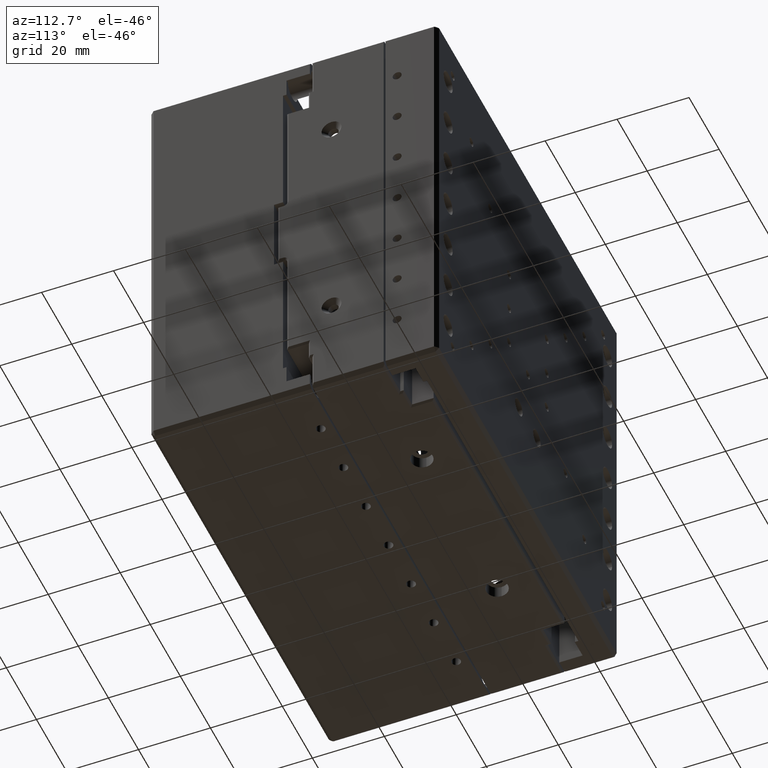
[diagram: clean part render]
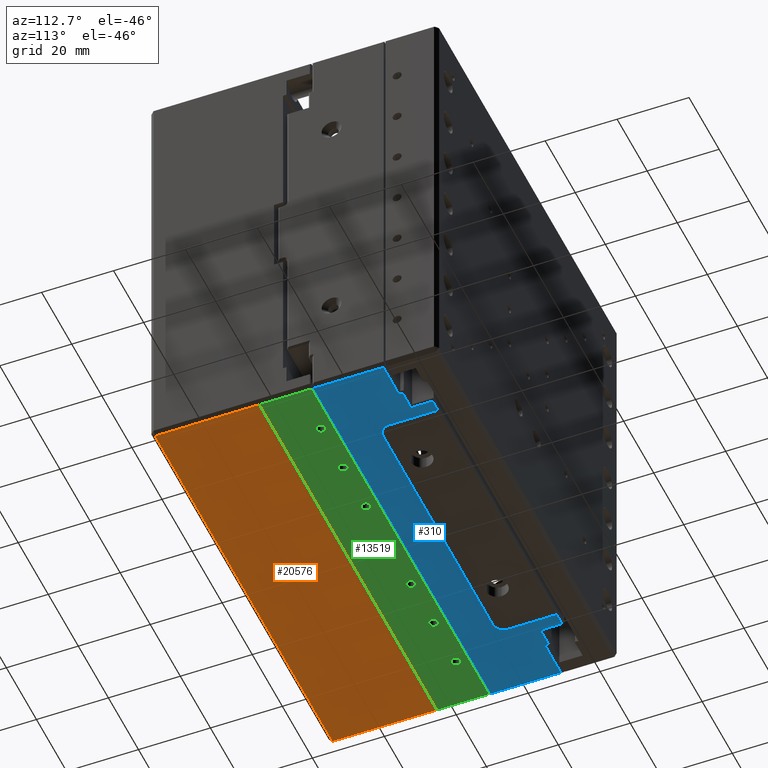
[diagram: same view with three faces highlighted in distinct colors, each labeled with its STEP entity id]
A machine part, auxiliary view with three faces highlighted in distinct colors.
Their STEP definitions:

[orange] entity #20576 — the highlighted planar face has unit normal (0, 0, 1).
#171 = VECTOR ( 'NONE', #16924, 1000.000000000000000 ) ;
#388 = CARTESIAN_POINT ( 'NONE',  ( 59.00000000000002100, -24.99999999999999300, -60.00000000000002800 ) ) ;
#523 = VECTOR ( 'NONE', #14532, 1000.000000000000000 ) ;
#1017 = ORIENTED_EDGE ( 'NONE', *, *, #13333, .T. ) ;
#3769 = VECTOR ( 'NONE', #12000, 1000.000000000000000 ) ;
#4400 = VERTEX_POINT ( 'NONE', #20379 ) ;
#4422 = EDGE_CURVE ( 'NONE', #6402, #12641, #8148, .T. ) ;
#4798 = DIRECTION ( 'NONE',  ( 1.000000000000000000, 0.0000000000000000000, -0.0000000000000000000 ) ) ;
#6305 = ORIENTED_EDGE ( 'NONE', *, *, #19284, .T. ) ;
#6318 = CARTESIAN_POINT ( 'NONE',  ( -60.00000000000000000, -54.00000000000000700, -60.00000000000002800 ) ) ;
#6402 = VERTEX_POINT ( 'NONE', #388 ) ;
#7756 = CARTESIAN_POINT ( 'NONE',  ( -59.00000000000001400, -54.00000000000000700, -60.00000000000002800 ) ) ;
#8098 = ORIENTED_EDGE ( 'NONE', *, *, #18927, .T. ) ;
#8148 = LINE ( 'NONE', #15329, #3769 ) ;
#8298 = PLANE ( 'NONE',  #15074 ) ;
#8508 = LINE ( 'NONE', #6318, #523 ) ;
#8548 = VECTOR ( 'NONE', #16457, 1000.000000000000000 ) ;
#12000 = DIRECTION ( 'NONE',  ( -1.000000000000000000, -0.0000000000000000000, -0.0000000000000000000 ) ) ;
#12641 = VERTEX_POINT ( 'NONE', #13646 ) ;
#12965 = VERTEX_POINT ( 'NONE', #7756 ) ;
#13333 = EDGE_CURVE ( 'NONE', #6402, #4400, #13375, .T. ) ;
#13375 = LINE ( 'NONE', #18687, #171 ) ;
#13646 = CARTESIAN_POINT ( 'NONE',  ( -59.00000000000001400, -24.99999999999999300, -60.00000000000002800 ) ) ;
#13740 = LINE ( 'NONE', #18182, #8548 ) ;
#13862 = EDGE_LOOP ( 'NONE', ( #18273, #1017, #6305, #8098 ) ) ;
#13902 = FACE_OUTER_BOUND ( 'NONE', #13862, .T. ) ;
#14532 = DIRECTION ( 'NONE',  ( -1.000000000000000000, 0.0000000000000000000, 0.0000000000000000000 ) ) ;
#15074 = AXIS2_PLACEMENT_3D ( 'NONE', #18084, #21473, #4798 ) ;
#15329 = CARTESIAN_POINT ( 'NONE',  ( -60.00000000000000000, -24.99999999999999300, -60.00000000000002800 ) ) ;
#16457 = DIRECTION ( 'NONE',  ( 0.0000000000000000000, 1.000000000000000000, 0.0000000000000000000 ) ) ;
#16924 = DIRECTION ( 'NONE',  ( 0.0000000000000000000, -1.000000000000000000, 0.0000000000000000000 ) ) ;
#18084 = CARTESIAN_POINT ( 'NONE',  ( -60.00000000000000000, -24.99999999999999300, -60.00000000000002800 ) ) ;
#18182 = CARTESIAN_POINT ( 'NONE',  ( -59.00000000000001400, -24.99999999999999300, -60.00000000000002800 ) ) ;
#18273 = ORIENTED_EDGE ( 'NONE', *, *, #4422, .F. ) ;
#18687 = CARTESIAN_POINT ( 'NONE',  ( 59.00000000000002100, -24.99999999999999300, -60.00000000000002800 ) ) ;
#18927 = EDGE_CURVE ( 'NONE', #12965, #12641, #13740, .T. ) ;
#19284 = EDGE_CURVE ( 'NONE', #4400, #12965, #8508, .T. ) ;
#20379 = CARTESIAN_POINT ( 'NONE',  ( 59.00000000000002100, -54.00000000000000700, -60.00000000000002800 ) ) ;
#20576 = ADVANCED_FACE ( 'NONE', ( #13902 ), #8298, .F. ) ;
#21473 = DIRECTION ( 'NONE',  ( 0.0000000000000000000, 0.0000000000000000000, 1.000000000000000000 ) ) ;

[blue] entity #310 — the highlighted planar face has unit normal (0, 0, 1).
#114 = CARTESIAN_POINT ( 'NONE',  ( 59.00000000000000000, 17.00000000000000000, -60.00000000000000000 ) ) ;
#153 = VERTEX_POINT ( 'NONE', #17146 ) ;
#286 = VERTEX_POINT ( 'NONE', #4367 ) ;
#310 = ADVANCED_FACE ( 'NONE', ( #13743 ), #1098, .F. ) ;
#338 = LINE ( 'NONE', #12233, #21033 ) ;
#354 = EDGE_CURVE ( 'NONE', #14848, #13797, #9636, .T. ) ;
#1040 = VERTEX_POINT ( 'NONE', #15326 ) ;
#1098 = PLANE ( 'NONE',  #18222 ) ;
#1236 = LINE ( 'NONE', #13287, #18053 ) ;
#1336 = LINE ( 'NONE', #4108, #3438 ) ;
#1419 = EDGE_CURVE ( 'NONE', #2786, #10967, #1236, .T. ) ;
#1724 = VECTOR ( 'NONE', #5847, 1000.000000000000000 ) ;
#1769 = EDGE_CURVE ( 'NONE', #18748, #14848, #13356, .T. ) ;
#2083 = CARTESIAN_POINT ( 'NONE',  ( -39.49999999999999300, 10.00000000000000200, -60.00000000000000000 ) ) ;
#2149 = CARTESIAN_POINT ( 'NONE',  ( 39.49999999999999300, 3.000000000000001800, -60.00000000000000000 ) ) ;
#2183 = CARTESIAN_POINT ( 'NONE',  ( -36.49999999999999300, 3.000000000000001800, -60.00000000000000000 ) ) ;
#2184 = AXIS2_PLACEMENT_3D ( 'NONE', #19085, #14304, #12710 ) ;
#2407 = DIRECTION ( 'NONE',  ( 0.0000000000000000000, -1.000000000000000000, 0.0000000000000000000 ) ) ;
#2653 = VECTOR ( 'NONE', #15018, 1000.000000000000000 ) ;
#2786 = VERTEX_POINT ( 'NONE', #14845 ) ;
#2926 = VERTEX_POINT ( 'NONE', #15548 ) ;
#3009 = LINE ( 'NONE', #21409, #13615 ) ;
#3127 = DIRECTION ( 'NONE',  ( -0.0000000000000000000, 1.000000000000000000, -0.0000000000000000000 ) ) ;
#3421 = LINE ( 'NONE', #10778, #11682 ) ;
#3438 = VECTOR ( 'NONE', #9073, 1000.000000000000000 ) ;
#3462 = VECTOR ( 'NONE', #18795, 1000.000000000000000 ) ;
#3935 = LINE ( 'NONE', #5818, #14807 ) ;
#3966 = ORIENTED_EDGE ( 'NONE', *, *, #6694, .T. ) ;
#4045 = ORIENTED_EDGE ( 'NONE', *, *, #12405, .T. ) ;
#4108 = CARTESIAN_POINT ( 'NONE',  ( 43.00000000000000000, 17.00000000000000000, -60.00000000000000000 ) ) ;
#4124 = VERTEX_POINT ( 'NONE', #18172 ) ;
#4367 = CARTESIAN_POINT ( 'NONE',  ( -59.00000000000000000, -10.00000000000000200, -60.00000000000000000 ) ) ;
#4499 = CARTESIAN_POINT ( 'NONE',  ( 36.49999999999999300, 1.734723475976807100E-015, -60.00000000000000000 ) ) ;
#4510 = CARTESIAN_POINT ( 'NONE',  ( 43.00000000000000000, 16.50000000000000000, -60.00000000000000000 ) ) ;
#4951 = ORIENTED_EDGE ( 'NONE', *, *, #18677, .T. ) ;
#4982 = DIRECTION ( 'NONE',  ( 0.0000000000000000000, -1.000000000000000000, 0.0000000000000000000 ) ) ;
#5818 = CARTESIAN_POINT ( 'NONE',  ( -60.00000000000000000, 9.500000000000001800, -60.00000000000000000 ) ) ;
#5847 = DIRECTION ( 'NONE',  ( 1.000000000000000000, 0.0000000000000000000, 0.0000000000000000000 ) ) ;
#5918 = CARTESIAN_POINT ( 'NONE',  ( -43.50000000000000700, 10.50000000000000000, -60.00000000000000000 ) ) ;
#5954 = DIRECTION ( 'NONE',  ( 1.000000000000000000, 0.0000000000000000000, -0.0000000000000000000 ) ) ;
#6224 = LINE ( 'NONE', #21216, #12919 ) ;
#6299 = CARTESIAN_POINT ( 'NONE',  ( -39.49999999999999300, 3.000000000000001800, -60.00000000000000000 ) ) ;
#6694 = EDGE_CURVE ( 'NONE', #13797, #4124, #17553, .T. ) ;
#6792 = CARTESIAN_POINT ( 'NONE',  ( -43.00000000000000000, 16.50000000000000000, -60.00000000000000000 ) ) ;
#6797 = VERTEX_POINT ( 'NONE', #2149 ) ;
#6888 = LINE ( 'NONE', #8965, #16211 ) ;
#7151 = DIRECTION ( 'NONE',  ( 1.000000000000000000, 0.0000000000000000000, 0.0000000000000000000 ) ) ;
#7415 = VERTEX_POINT ( 'NONE', #6299 ) ;
#7468 = DIRECTION ( 'NONE',  ( 1.000000000000000000, 0.0000000000000000000, 0.0000000000000000000 ) ) ;
#7626 = EDGE_CURVE ( 'NONE', #7415, #4124, #13507, .T. ) ;
#7685 = ORIENTED_EDGE ( 'NONE', *, *, #12503, .T. ) ;
#7837 = LINE ( 'NONE', #10461, #3462 ) ;
#8161 = DIRECTION ( 'NONE',  ( -0.0000000000000000000, 1.000000000000000000, 0.0000000000000000000 ) ) ;
#8376 = EDGE_CURVE ( 'NONE', #153, #17509, #20007, .T. ) ;
#8781 = ORIENTED_EDGE ( 'NONE', *, *, #16252, .T. ) ;
#8965 = CARTESIAN_POINT ( 'NONE',  ( 48.49999999999998600, 17.00000000000000000, -60.00000000000000000 ) ) ;
#9053 = EDGE_CURVE ( 'NONE', #19195, #2926, #3935, .T. ) ;
#9073 = DIRECTION ( 'NONE',  ( 0.0000000000000000000, -1.000000000000000000, 0.0000000000000000000 ) ) ;
#9112 = ORIENTED_EDGE ( 'NONE', *, *, #9995, .T. ) ;
#9374 = EDGE_LOOP ( 'NONE', ( #16180, #16372, #7685, #21355, #8781, #4045, #16390, #9946, #12338, #3966, #19718, #14742, #17790, #14410, #9112, #16741, #4951, #16452 ) ) ;
#9429 = CIRCLE ( 'NONE', #2184, 3.000000000000002700 ) ;
#9636 = LINE ( 'NONE', #21170, #17934 ) ;
#9937 = VECTOR ( 'NONE', #7151, 1000.000000000000000 ) ;
#9946 = ORIENTED_EDGE ( 'NONE', *, *, #1769, .T. ) ;
#9995 = EDGE_CURVE ( 'NONE', #6797, #153, #3009, .T. ) ;
#10291 = EDGE_CURVE ( 'NONE', #14198, #6797, #9429, .T. ) ;
#10461 = CARTESIAN_POINT ( 'NONE',  ( 39.49999999999999300, 1.734723475976807100E-015, -60.00000000000000000 ) ) ;
#10778 = CARTESIAN_POINT ( 'NONE',  ( -60.00000000000000000, -10.00000000000000200, -60.00000000000000000 ) ) ;
#10967 = VERTEX_POINT ( 'NONE', #18421 ) ;
#11313 = CARTESIAN_POINT ( 'NONE',  ( -43.00000000000000000, 10.50000000000000000, -60.00000000000000000 ) ) ;
#11552 = DIRECTION ( 'NONE',  ( 1.000000000000000000, 0.0000000000000000000, 0.0000000000000000000 ) ) ;
#11682 = VECTOR ( 'NONE', #17526, 1000.000000000000000 ) ;
#11718 = VERTEX_POINT ( 'NONE', #11792 ) ;
#11792 = CARTESIAN_POINT ( 'NONE',  ( 59.00000000000000000, -10.00000000000000200, -60.00000000000000000 ) ) ;
#11967 = EDGE_CURVE ( 'NONE', #286, #11718, #3421, .T. ) ;
#12022 = VERTEX_POINT ( 'NONE', #19384 ) ;
#12233 = CARTESIAN_POINT ( 'NONE',  ( -59.00000000000000000, 17.00000000000000000, -60.00000000000000000 ) ) ;
#12338 = ORIENTED_EDGE ( 'NONE', *, *, #354, .T. ) ;
#12405 = EDGE_CURVE ( 'NONE', #12022, #17229, #6224, .T. ) ;
#12503 = EDGE_CURVE ( 'NONE', #2926, #11718, #19387, .T. ) ;
#12506 = CARTESIAN_POINT ( 'NONE',  ( -48.50000000000000000, 17.00000000000000000, -60.00000000000000000 ) ) ;
#12710 = DIRECTION ( 'NONE',  ( 1.000000000000000000, 0.0000000000000000000, 0.0000000000000000000 ) ) ;
#12836 = CARTESIAN_POINT ( 'NONE',  ( -48.50000000000000000, 9.500000000000001800, -60.00000000000000000 ) ) ;
#12859 = CARTESIAN_POINT ( 'NONE',  ( -60.00000000000000000, 17.00000000000000000, -60.00000000000000000 ) ) ;
#12919 = VECTOR ( 'NONE', #16099, 1000.000000000000000 ) ;
#12932 = DIRECTION ( 'NONE',  ( -0.0000000000000000000, 1.000000000000000000, 0.0000000000000000000 ) ) ;
#13130 = VECTOR ( 'NONE', #18199, 1000.000000000000000 ) ;
#13135 = CARTESIAN_POINT ( 'NONE',  ( -60.00000000000000000, 16.50000000000000000, -60.00000000000000000 ) ) ;
#13210 = EDGE_CURVE ( 'NONE', #7415, #1040, #18292, .T. ) ;
#13287 = CARTESIAN_POINT ( 'NONE',  ( -60.00000000000000000, 10.50000000000000000, -60.00000000000000000 ) ) ;
#13356 = LINE ( 'NONE', #5918, #1724 ) ;
#13436 = EDGE_CURVE ( 'NONE', #10967, #19195, #6888, .T. ) ;
#13507 = LINE ( 'NONE', #2083, #2653 ) ;
#13615 = VECTOR ( 'NONE', #3127, 1000.000000000000000 ) ;
#13743 = FACE_OUTER_BOUND ( 'NONE', #9374, .T. ) ;
#13760 = DIRECTION ( 'NONE',  ( 0.0000000000000000000, 0.0000000000000000000, 1.000000000000000000 ) ) ;
#13797 = VERTEX_POINT ( 'NONE', #6792 ) ;
#13837 = CARTESIAN_POINT ( 'NONE',  ( 48.49999999999998600, 9.500000000000001800, -60.00000000000000000 ) ) ;
#14198 = VERTEX_POINT ( 'NONE', #4499 ) ;
#14304 = DIRECTION ( 'NONE',  ( 0.0000000000000000000, 0.0000000000000000000, 1.000000000000000000 ) ) ;
#14410 = ORIENTED_EDGE ( 'NONE', *, *, #10291, .T. ) ;
#14521 = DIRECTION ( 'NONE',  ( 0.0000000000000000000, 0.0000000000000000000, 1.000000000000000000 ) ) ;
#14742 = ORIENTED_EDGE ( 'NONE', *, *, #13210, .T. ) ;
#14807 = VECTOR ( 'NONE', #7468, 1000.000000000000000 ) ;
#14845 = CARTESIAN_POINT ( 'NONE',  ( 43.00000000000000000, 10.50000000000000000, -60.00000000000000000 ) ) ;
#14848 = VERTEX_POINT ( 'NONE', #11313 ) ;
#14888 = AXIS2_PLACEMENT_3D ( 'NONE', #2183, #13760, #20095 ) ;
#15018 = DIRECTION ( 'NONE',  ( -0.0000000000000000000, 1.000000000000000000, -0.0000000000000000000 ) ) ;
#15326 = CARTESIAN_POINT ( 'NONE',  ( -36.49999999999999300, 1.734723475976807100E-015, -60.00000000000000000 ) ) ;
#15548 = CARTESIAN_POINT ( 'NONE',  ( 59.00000000000000000, 9.500000000000001800, -60.00000000000000000 ) ) ;
#15942 = VECTOR ( 'NONE', #8161, 1000.000000000000000 ) ;
#16017 = VECTOR ( 'NONE', #4982, 1000.000000000000000 ) ;
#16099 = DIRECTION ( 'NONE',  ( 1.000000000000000000, 0.0000000000000000000, 0.0000000000000000000 ) ) ;
#16180 = ORIENTED_EDGE ( 'NONE', *, *, #13436, .T. ) ;
#16211 = VECTOR ( 'NONE', #2407, 1000.000000000000000 ) ;
#16252 = EDGE_CURVE ( 'NONE', #286, #12022, #338, .T. ) ;
#16372 = ORIENTED_EDGE ( 'NONE', *, *, #9053, .T. ) ;
#16390 = ORIENTED_EDGE ( 'NONE', *, *, #17627, .T. ) ;
#16452 = ORIENTED_EDGE ( 'NONE', *, *, #1419, .T. ) ;
#16741 = ORIENTED_EDGE ( 'NONE', *, *, #8376, .T. ) ;
#17047 = CARTESIAN_POINT ( 'NONE',  ( -60.00000000000000000, 16.50000000000000000, -60.00000000000000000 ) ) ;
#17146 = CARTESIAN_POINT ( 'NONE',  ( 39.49999999999999300, 16.50000000000000000, -60.00000000000000000 ) ) ;
#17229 = VERTEX_POINT ( 'NONE', #12836 ) ;
#17509 = VERTEX_POINT ( 'NONE', #4510 ) ;
#17526 = DIRECTION ( 'NONE',  ( 1.000000000000000000, 0.0000000000000000000, -0.0000000000000000000 ) ) ;
#17553 = LINE ( 'NONE', #13135, #13130 ) ;
#17627 = EDGE_CURVE ( 'NONE', #17229, #18748, #20846, .T. ) ;
#17790 = ORIENTED_EDGE ( 'NONE', *, *, #18606, .F. ) ;
#17934 = VECTOR ( 'NONE', #12932, 1000.000000000000000 ) ;
#18053 = VECTOR ( 'NONE', #11552, 1000.000000000000000 ) ;
#18172 = CARTESIAN_POINT ( 'NONE',  ( -39.49999999999999300, 16.50000000000000000, -60.00000000000000000 ) ) ;
#18199 = DIRECTION ( 'NONE',  ( 1.000000000000000000, 0.0000000000000000000, 0.0000000000000000000 ) ) ;
#18222 = AXIS2_PLACEMENT_3D ( 'NONE', #12859, #14521, #5954 ) ;
#18292 = CIRCLE ( 'NONE', #14888, 3.000000000000002700 ) ;
#18421 = CARTESIAN_POINT ( 'NONE',  ( 48.49999999999998600, 10.50000000000000000, -60.00000000000000000 ) ) ;
#18606 = EDGE_CURVE ( 'NONE', #14198, #1040, #7837, .T. ) ;
#18677 = EDGE_CURVE ( 'NONE', #17509, #2786, #1336, .T. ) ;
#18748 = VERTEX_POINT ( 'NONE', #19486 ) ;
#18795 = DIRECTION ( 'NONE',  ( -1.000000000000000000, 0.0000000000000000000, 0.0000000000000000000 ) ) ;
#19052 = DIRECTION ( 'NONE',  ( 0.0000000000000000000, 1.000000000000000000, 0.0000000000000000000 ) ) ;
#19085 = CARTESIAN_POINT ( 'NONE',  ( 36.49999999999999300, 3.000000000000001800, -60.00000000000000000 ) ) ;
#19195 = VERTEX_POINT ( 'NONE', #13837 ) ;
#19384 = CARTESIAN_POINT ( 'NONE',  ( -59.00000000000000000, 9.500000000000001800, -60.00000000000000000 ) ) ;
#19387 = LINE ( 'NONE', #114, #16017 ) ;
#19486 = CARTESIAN_POINT ( 'NONE',  ( -48.50000000000000000, 10.50000000000000000, -60.00000000000000000 ) ) ;
#19718 = ORIENTED_EDGE ( 'NONE', *, *, #7626, .F. ) ;
#20007 = LINE ( 'NONE', #17047, #9937 ) ;
#20095 = DIRECTION ( 'NONE',  ( 1.000000000000000000, 0.0000000000000000000, 0.0000000000000000000 ) ) ;
#20846 = LINE ( 'NONE', #12506, #15942 ) ;
#21033 = VECTOR ( 'NONE', #19052, 1000.000000000000000 ) ;
#21170 = CARTESIAN_POINT ( 'NONE',  ( -43.00000000000000000, 17.00000000000000000, -60.00000000000000000 ) ) ;
#21216 = CARTESIAN_POINT ( 'NONE',  ( -49.00000000000000000, 9.500000000000001800, -60.00000000000000000 ) ) ;
#21355 = ORIENTED_EDGE ( 'NONE', *, *, #11967, .F. ) ;
#21409 = CARTESIAN_POINT ( 'NONE',  ( 39.49999999999999300, 10.00000000000000200, -60.00000000000000000 ) ) ;

[green] entity #13519 — the highlighted planar face has unit normal (0, 0, 1).
#188 = DIRECTION ( 'NONE',  ( -0.0000000000000000000, -0.0000000000000000000, -1.000000000000000000 ) ) ;
#216 = ORIENTED_EDGE ( 'NONE', *, *, #5587, .T. ) ;
#400 = CARTESIAN_POINT ( 'NONE',  ( 29.99999999999999300, -13.74999999999999800, -60.00000000000002100 ) ) ;
#520 = CARTESIAN_POINT ( 'NONE',  ( -15.00000000000000700, -13.74999999999999800, -60.00000000000002100 ) ) ;
#610 = DIRECTION ( 'NONE',  ( -1.000000000000000000, 0.0000000000000000000, 0.0000000000000000000 ) ) ;
#641 = VECTOR ( 'NONE', #15809, 1000.000000000000000 ) ;
#724 = CARTESIAN_POINT ( 'NONE',  ( -13.75000000000000900, -13.74999999999999800, -60.00000000000002100 ) ) ;
#1037 = VERTEX_POINT ( 'NONE', #8817 ) ;
#1407 = ORIENTED_EDGE ( 'NONE', *, *, #20050, .F. ) ;
#1435 = ORIENTED_EDGE ( 'NONE', *, *, #5125, .F. ) ;
#1710 = CIRCLE ( 'NONE', #5779, 1.249999999999997600 ) ;
#1821 = DIRECTION ( 'NONE',  ( -0.0000000000000000000, -0.0000000000000000000, -1.000000000000000000 ) ) ;
#1984 = FACE_BOUND ( 'NONE', #16908, .T. ) ;
#2088 = ORIENTED_EDGE ( 'NONE', *, *, #10344, .T. ) ;
#2135 = VERTEX_POINT ( 'NONE', #5476 ) ;
#2396 = CARTESIAN_POINT ( 'NONE',  ( -59.99999999999999300, -24.99999999999999600, -60.00000000000002100 ) ) ;
#2496 = ORIENTED_EDGE ( 'NONE', *, *, #11852, .F. ) ;
#2516 = EDGE_CURVE ( 'NONE', #18852, #11033, #13800, .T. ) ;
#2723 = CARTESIAN_POINT ( 'NONE',  ( 14.99999999999999300, -13.74999999999999800, -60.00000000000002100 ) ) ;
#2760 = CARTESIAN_POINT ( 'NONE',  ( -58.99999999999999300, -10.49999999999999600, -60.00000000000002100 ) ) ;
#3483 = CARTESIAN_POINT ( 'NONE',  ( 44.99999999999999300, -13.74999999999999800, -60.00000000000002100 ) ) ;
#3545 = CARTESIAN_POINT ( 'NONE',  ( 1.249999999999991100, -13.74999999999999800, -60.00000000000002100 ) ) ;
#3845 = ORIENTED_EDGE ( 'NONE', *, *, #4682, .F. ) ;
#3933 = DIRECTION ( 'NONE',  ( -0.0000000000000000000, -0.0000000000000000000, -1.000000000000000000 ) ) ;
#4097 = AXIS2_PLACEMENT_3D ( 'NONE', #12666, #21045, #14395 ) ;
#4498 = DIRECTION ( 'NONE',  ( -1.000000000000000000, -0.0000000000000000000, -0.0000000000000000000 ) ) ;
#4555 = EDGE_CURVE ( 'NONE', #15375, #5712, #19780, .T. ) ;
#4600 = VERTEX_POINT ( 'NONE', #17915 ) ;
#4682 = EDGE_CURVE ( 'NONE', #19372, #12773, #5043, .T. ) ;
#4823 = DIRECTION ( 'NONE',  ( -0.0000000000000000000, -0.0000000000000000000, -1.000000000000000000 ) ) ;
#4847 = FACE_BOUND ( 'NONE', #19182, .T. ) ;
#4859 = CARTESIAN_POINT ( 'NONE',  ( -1.250000000000005100, -13.74999999999999800, -60.00000000000002100 ) ) ;
#4894 = CARTESIAN_POINT ( 'NONE',  ( 44.99999999999999300, -13.74999999999999800, -60.00000000000002100 ) ) ;
#4921 = DIRECTION ( 'NONE',  ( -1.000000000000000000, -0.0000000000000000000, -0.0000000000000000000 ) ) ;
#5043 = CIRCLE ( 'NONE', #6833, 1.249999999999997600 ) ;
#5059 = AXIS2_PLACEMENT_3D ( 'NONE', #15154, #188, #20263 ) ;
#5061 = LINE ( 'NONE', #14094, #641 ) ;
#5125 = EDGE_CURVE ( 'NONE', #11033, #18852, #12987, .T. ) ;
#5147 = DIRECTION ( 'NONE',  ( -0.0000000000000000000, -0.0000000000000000000, -1.000000000000000000 ) ) ;
#5249 = CIRCLE ( 'NONE', #16208, 1.249999999999994200 ) ;
#5294 = ORIENTED_EDGE ( 'NONE', *, *, #17819, .F. ) ;
#5315 = EDGE_CURVE ( 'NONE', #12773, #19372, #1710, .T. ) ;
#5354 = ORIENTED_EDGE ( 'NONE', *, *, #15421, .F. ) ;
#5476 = CARTESIAN_POINT ( 'NONE',  ( 59.00000000000000700, -24.99999999999999600, -60.00000000000002100 ) ) ;
#5512 = VERTEX_POINT ( 'NONE', #724 ) ;
#5587 = EDGE_CURVE ( 'NONE', #8680, #18227, #18142, .T. ) ;
#5589 = EDGE_CURVE ( 'NONE', #2135, #8680, #9329, .T. ) ;
#5712 = VERTEX_POINT ( 'NONE', #14881 ) ;
#5779 = AXIS2_PLACEMENT_3D ( 'NONE', #8517, #1821, #13309 ) ;
#5904 = CIRCLE ( 'NONE', #11455, 1.249999999999998000 ) ;
#5905 = AXIS2_PLACEMENT_3D ( 'NONE', #15823, #14169, #12790 ) ;
#6253 = ORIENTED_EDGE ( 'NONE', *, *, #4555, .F. ) ;
#6388 = FACE_BOUND ( 'NONE', #8638, .T. ) ;
#6619 = CARTESIAN_POINT ( 'NONE',  ( -46.25000000000000700, -13.74999999999999800, -60.00000000000002100 ) ) ;
#6833 = AXIS2_PLACEMENT_3D ( 'NONE', #400, #15001, #10157 ) ;
#6909 = ORIENTED_EDGE ( 'NONE', *, *, #12916, .F. ) ;
#7007 = VERTEX_POINT ( 'NONE', #11390 ) ;
#7182 = EDGE_LOOP ( 'NONE', ( #16911, #1435 ) ) ;
#7193 = AXIS2_PLACEMENT_3D ( 'NONE', #15348, #13485, #610 ) ;
#7541 = CARTESIAN_POINT ( 'NONE',  ( -58.99999999999999300, -10.49999999999999600, -60.00000000000002100 ) ) ;
#7559 = DIRECTION ( 'NONE',  ( -1.000000000000000000, 0.0000000000000000000, 0.0000000000000000000 ) ) ;
#7640 = VERTEX_POINT ( 'NONE', #3545 ) ;
#7982 = CARTESIAN_POINT ( 'NONE',  ( -58.99999999999999300, -24.99999999999999600, -60.00000000000002100 ) ) ;
#8210 = DIRECTION ( 'NONE',  ( -0.0000000000000000000, -0.0000000000000000000, -1.000000000000000000 ) ) ;
#8438 = DIRECTION ( 'NONE',  ( -1.000000000000000000, 0.0000000000000000000, 0.0000000000000000000 ) ) ;
#8476 = ORIENTED_EDGE ( 'NONE', *, *, #20856, .F. ) ;
#8517 = CARTESIAN_POINT ( 'NONE',  ( 29.99999999999999300, -13.74999999999999800, -60.00000000000002100 ) ) ;
#8582 = DIRECTION ( 'NONE',  ( -1.000000000000000000, 0.0000000000000000000, 0.0000000000000000000 ) ) ;
#8638 = EDGE_LOOP ( 'NONE', ( #6909, #8476 ) ) ;
#8680 = VERTEX_POINT ( 'NONE', #7982 ) ;
#8817 = CARTESIAN_POINT ( 'NONE',  ( 13.74999999999999500, -13.74999999999999800, -60.00000000000002100 ) ) ;
#9033 = DIRECTION ( 'NONE',  ( -0.0000000000000000000, -0.0000000000000000000, -1.000000000000000000 ) ) ;
#9329 = LINE ( 'NONE', #2396, #13475 ) ;
#9821 = VECTOR ( 'NONE', #4921, 1000.000000000000000 ) ;
#10157 = DIRECTION ( 'NONE',  ( -1.000000000000000000, 0.0000000000000000000, 0.0000000000000000000 ) ) ;
#10249 = ORIENTED_EDGE ( 'NONE', *, *, #20577, .F. ) ;
#10334 = LINE ( 'NONE', #19789, #9821 ) ;
#10344 = EDGE_CURVE ( 'NONE', #4600, #2135, #5061, .T. ) ;
#10585 = EDGE_LOOP ( 'NONE', ( #1407, #5294 ) ) ;
#10832 = CIRCLE ( 'NONE', #5059, 1.249999999999997600 ) ;
#11033 = VERTEX_POINT ( 'NONE', #18121 ) ;
#11093 = DIRECTION ( 'NONE',  ( -0.0000000000000000000, -0.0000000000000000000, -1.000000000000000000 ) ) ;
#11226 = ORIENTED_EDGE ( 'NONE', *, *, #5589, .T. ) ;
#11351 = VERTEX_POINT ( 'NONE', #15706 ) ;
#11390 = CARTESIAN_POINT ( 'NONE',  ( 43.74999999999999300, -13.74999999999999800, -60.00000000000002100 ) ) ;
#11455 = AXIS2_PLACEMENT_3D ( 'NONE', #20697, #14138, #7559 ) ;
#11852 = EDGE_CURVE ( 'NONE', #5712, #15375, #5249, .T. ) ;
#12074 = DIRECTION ( 'NONE',  ( -1.000000000000000000, 0.0000000000000000000, 0.0000000000000000000 ) ) ;
#12373 = CARTESIAN_POINT ( 'NONE',  ( -45.00000000000000700, -13.74999999999999800, -60.00000000000002100 ) ) ;
#12496 = EDGE_CURVE ( 'NONE', #4600, #18227, #10334, .T. ) ;
#12615 = EDGE_CURVE ( 'NONE', #11351, #5512, #10832, .T. ) ;
#12666 = CARTESIAN_POINT ( 'NONE',  ( -45.00000000000000700, -13.74999999999999800, -60.00000000000002100 ) ) ;
#12728 = AXIS2_PLACEMENT_3D ( 'NONE', #520, #9033, #15471 ) ;
#12773 = VERTEX_POINT ( 'NONE', #17322 ) ;
#12790 = DIRECTION ( 'NONE',  ( 1.000000000000000000, 0.0000000000000000000, -0.0000000000000000000 ) ) ;
#12916 = EDGE_CURVE ( 'NONE', #1037, #18682, #20622, .T. ) ;
#12964 = ORIENTED_EDGE ( 'NONE', *, *, #12615, .F. ) ;
#12987 = CIRCLE ( 'NONE', #4097, 1.250000000000001100 ) ;
#13092 = CARTESIAN_POINT ( 'NONE',  ( 31.24999999999998900, -13.74999999999999800, -60.00000000000002100 ) ) ;
#13309 = DIRECTION ( 'NONE',  ( -1.000000000000000000, 0.0000000000000000000, 0.0000000000000000000 ) ) ;
#13475 = VECTOR ( 'NONE', #4498, 1000.000000000000000 ) ;
#13485 = DIRECTION ( 'NONE',  ( -0.0000000000000000000, -0.0000000000000000000, -1.000000000000000000 ) ) ;
#13519 = ADVANCED_FACE ( 'NONE', ( #19819, #6388, #15411, #15174, #21118, #4847, #1984, #19058 ), #14377, .F. ) ;
#13658 = VERTEX_POINT ( 'NONE', #4859 ) ;
#13800 = CIRCLE ( 'NONE', #20472, 1.250000000000001100 ) ;
#13833 = CARTESIAN_POINT ( 'NONE',  ( -30.00000000000000700, -13.74999999999999800, -60.00000000000002100 ) ) ;
#14072 = CARTESIAN_POINT ( 'NONE',  ( 46.24999999999999300, -13.74999999999999800, -60.00000000000002100 ) ) ;
#14094 = CARTESIAN_POINT ( 'NONE',  ( 59.00000000000000700, -10.49999999999999600, -60.00000000000002100 ) ) ;
#14138 = DIRECTION ( 'NONE',  ( -0.0000000000000000000, -0.0000000000000000000, -1.000000000000000000 ) ) ;
#14169 = DIRECTION ( 'NONE',  ( 0.0000000000000000000, 0.0000000000000000000, 1.000000000000000000 ) ) ;
#14224 = CIRCLE ( 'NONE', #14610, 1.250000000000001100 ) ;
#14377 = PLANE ( 'NONE',  #5905 ) ;
#14395 = DIRECTION ( 'NONE',  ( -1.000000000000000000, 0.0000000000000000000, 0.0000000000000000000 ) ) ;
#14589 = AXIS2_PLACEMENT_3D ( 'NONE', #2723, #11093, #17398 ) ;
#14610 = AXIS2_PLACEMENT_3D ( 'NONE', #4894, #4823, #18043 ) ;
#14630 = VERTEX_POINT ( 'NONE', #14072 ) ;
#14643 = DIRECTION ( 'NONE',  ( -1.000000000000000000, 0.0000000000000000000, 0.0000000000000000000 ) ) ;
#14645 = EDGE_CURVE ( 'NONE', #13658, #7640, #5904, .T. ) ;
#14806 = EDGE_LOOP ( 'NONE', ( #11226, #216, #16357, #2088 ) ) ;
#14881 = CARTESIAN_POINT ( 'NONE',  ( -31.25000000000000000, -13.74999999999999800, -60.00000000000002100 ) ) ;
#15001 = DIRECTION ( 'NONE',  ( -0.0000000000000000000, -0.0000000000000000000, -1.000000000000000000 ) ) ;
#15026 = CARTESIAN_POINT ( 'NONE',  ( -6.938893903907228400E-015, -13.74999999999999800, -60.00000000000002100 ) ) ;
#15154 = CARTESIAN_POINT ( 'NONE',  ( -15.00000000000000700, -13.74999999999999800, -60.00000000000002100 ) ) ;
#15174 = FACE_BOUND ( 'NONE', #10585, .T. ) ;
#15348 = CARTESIAN_POINT ( 'NONE',  ( 14.99999999999999300, -13.74999999999999800, -60.00000000000002100 ) ) ;
#15375 = VERTEX_POINT ( 'NONE', #19957 ) ;
#15411 = FACE_OUTER_BOUND ( 'NONE', #14806, .T. ) ;
#15421 = EDGE_CURVE ( 'NONE', #5512, #11351, #21070, .T. ) ;
#15471 = DIRECTION ( 'NONE',  ( -1.000000000000000000, 0.0000000000000000000, 0.0000000000000000000 ) ) ;
#15706 = CARTESIAN_POINT ( 'NONE',  ( -16.25000000000000400, -13.74999999999999800, -60.00000000000002100 ) ) ;
#15809 = DIRECTION ( 'NONE',  ( 0.0000000000000000000, -1.000000000000000000, 0.0000000000000000000 ) ) ;
#15823 = CARTESIAN_POINT ( 'NONE',  ( -59.99999999999999300, -10.49999999999999600, -60.00000000000002100 ) ) ;
#15963 = DIRECTION ( 'NONE',  ( 0.0000000000000000000, 1.000000000000000000, 0.0000000000000000000 ) ) ;
#16208 = AXIS2_PLACEMENT_3D ( 'NONE', #13833, #3933, #12074 ) ;
#16357 = ORIENTED_EDGE ( 'NONE', *, *, #12496, .F. ) ;
#16497 = CIRCLE ( 'NONE', #17997, 1.249999999999998000 ) ;
#16685 = ORIENTED_EDGE ( 'NONE', *, *, #5315, .F. ) ;
#16908 = EDGE_LOOP ( 'NONE', ( #2496, #6253 ) ) ;
#16911 = ORIENTED_EDGE ( 'NONE', *, *, #2516, .F. ) ;
#17044 = EDGE_LOOP ( 'NONE', ( #16685, #3845 ) ) ;
#17210 = EDGE_LOOP ( 'NONE', ( #20319, #10249 ) ) ;
#17322 = CARTESIAN_POINT ( 'NONE',  ( 28.74999999999999300, -13.74999999999999800, -60.00000000000002100 ) ) ;
#17398 = DIRECTION ( 'NONE',  ( -1.000000000000000000, 0.0000000000000000000, 0.0000000000000000000 ) ) ;
#17819 = EDGE_CURVE ( 'NONE', #14630, #7007, #20059, .T. ) ;
#17915 = CARTESIAN_POINT ( 'NONE',  ( 59.00000000000000700, -10.49999999999999600, -60.00000000000002100 ) ) ;
#17931 = AXIS2_PLACEMENT_3D ( 'NONE', #3483, #5147, #8438 ) ;
#17997 = AXIS2_PLACEMENT_3D ( 'NONE', #15026, #20074, #8582 ) ;
#18043 = DIRECTION ( 'NONE',  ( -1.000000000000000000, 0.0000000000000000000, 0.0000000000000000000 ) ) ;
#18121 = CARTESIAN_POINT ( 'NONE',  ( -43.75000000000000700, -13.74999999999999800, -60.00000000000002100 ) ) ;
#18142 = LINE ( 'NONE', #2760, #20435 ) ;
#18227 = VERTEX_POINT ( 'NONE', #7541 ) ;
#18682 = VERTEX_POINT ( 'NONE', #18931 ) ;
#18852 = VERTEX_POINT ( 'NONE', #6619 ) ;
#18931 = CARTESIAN_POINT ( 'NONE',  ( 16.24999999999998900, -13.74999999999999800, -60.00000000000002100 ) ) ;
#18977 = DIRECTION ( 'NONE',  ( -0.0000000000000000000, -0.0000000000000000000, -1.000000000000000000 ) ) ;
#19039 = AXIS2_PLACEMENT_3D ( 'NONE', #21373, #8210, #14643 ) ;
#19058 = FACE_BOUND ( 'NONE', #7182, .T. ) ;
#19182 = EDGE_LOOP ( 'NONE', ( #12964, #5354 ) ) ;
#19372 = VERTEX_POINT ( 'NONE', #13092 ) ;
#19780 = CIRCLE ( 'NONE', #19039, 1.249999999999994200 ) ;
#19789 = CARTESIAN_POINT ( 'NONE',  ( -59.99999999999999300, -10.49999999999999600, -60.00000000000002100 ) ) ;
#19819 = FACE_BOUND ( 'NONE', #17210, .T. ) ;
#19957 = CARTESIAN_POINT ( 'NONE',  ( -28.75000000000000700, -13.74999999999999800, -60.00000000000002100 ) ) ;
#20050 = EDGE_CURVE ( 'NONE', #7007, #14630, #14224, .T. ) ;
#20059 = CIRCLE ( 'NONE', #17931, 1.250000000000001100 ) ;
#20074 = DIRECTION ( 'NONE',  ( -0.0000000000000000000, -0.0000000000000000000, -1.000000000000000000 ) ) ;
#20263 = DIRECTION ( 'NONE',  ( -1.000000000000000000, 0.0000000000000000000, 0.0000000000000000000 ) ) ;
#20319 = ORIENTED_EDGE ( 'NONE', *, *, #14645, .F. ) ;
#20435 = VECTOR ( 'NONE', #15963, 1000.000000000000000 ) ;
#20472 = AXIS2_PLACEMENT_3D ( 'NONE', #12373, #18977, #20830 ) ;
#20577 = EDGE_CURVE ( 'NONE', #7640, #13658, #16497, .T. ) ;
#20595 = CIRCLE ( 'NONE', #7193, 1.249999999999997600 ) ;
#20622 = CIRCLE ( 'NONE', #14589, 1.249999999999997600 ) ;
#20697 = CARTESIAN_POINT ( 'NONE',  ( -6.938893903907228400E-015, -13.74999999999999800, -60.00000000000002100 ) ) ;
#20830 = DIRECTION ( 'NONE',  ( -1.000000000000000000, 0.0000000000000000000, 0.0000000000000000000 ) ) ;
#20856 = EDGE_CURVE ( 'NONE', #18682, #1037, #20595, .T. ) ;
#21045 = DIRECTION ( 'NONE',  ( -0.0000000000000000000, -0.0000000000000000000, -1.000000000000000000 ) ) ;
#21070 = CIRCLE ( 'NONE', #12728, 1.249999999999997600 ) ;
#21118 = FACE_BOUND ( 'NONE', #17044, .T. ) ;
#21373 = CARTESIAN_POINT ( 'NONE',  ( -30.00000000000000700, -13.74999999999999800, -60.00000000000002100 ) ) ;